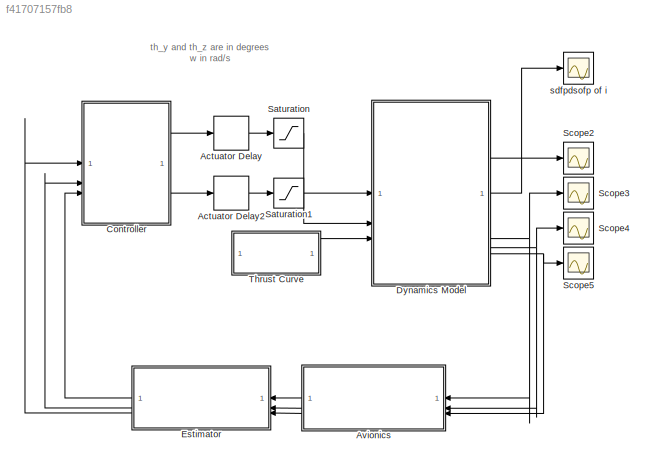
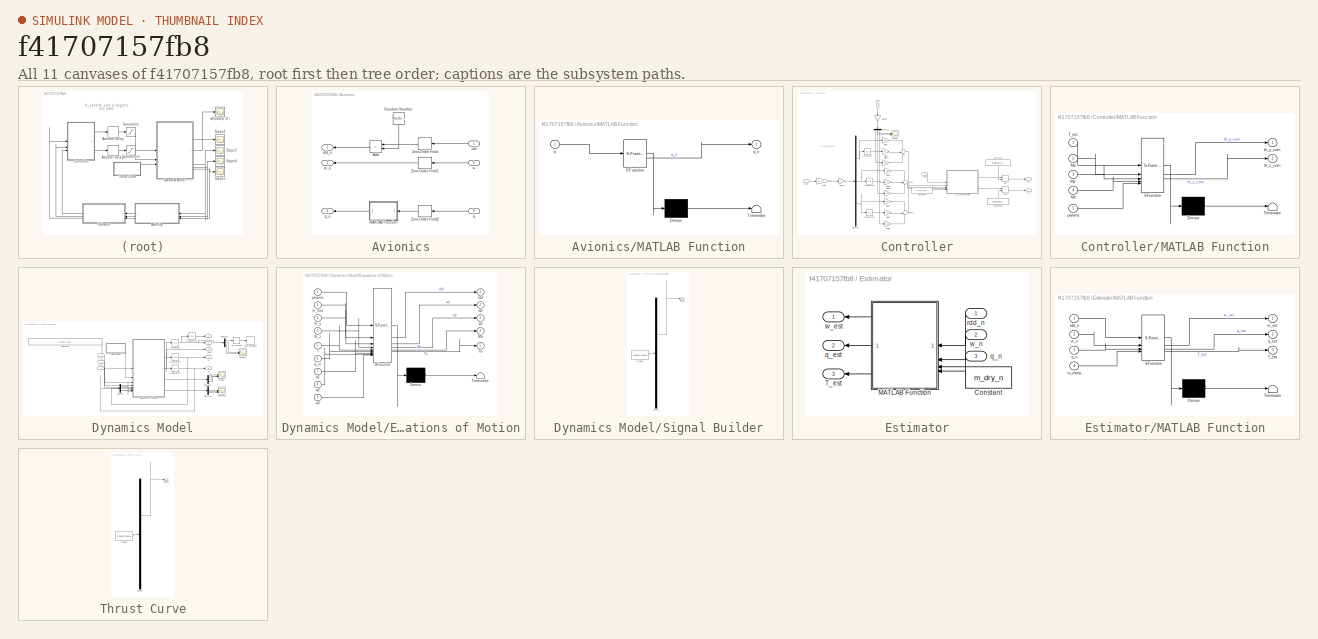
[diagram: thumbnail index - all 11 canvases of the model, root first then tree order]
MODEL slx_f41707157fb8
KIND model
CONFIG AbsTol = auto
CONFIG EnableMultiTasking = off
CONFIG FixedStep = auto
CONFIG MaxStep = auto
CONFIG MinStep = auto
CONFIG RelTol = 1e-3
CONFIG SampleTimeConstraint = Unconstrained
CONFIG SolverName = VariableStepAuto
CONFIG StartTime = 0.0
CONFIG StopTime = 7
BLOCK [Delay] Actuator Delay
  DelayLength = 1
  InitialCondition = 0
  InputPortMap = u0
  SampleTime = servo_delay_mc
BLOCK [Delay] Actuator Delay2
  DelayLength = 1
  InitialCondition = 0
  InputPortMap = u0
  SampleTime = servo_delay_mc
BLOCK [SubSystem] Avionics
BLOCK [Sum] Avionics/Add
  IconShape = rectangular
  NameLocation = top
BLOCK [SubSystem] Avionics/MATLAB Function
  ErrorFcn = Stateflow.Translate.translate
  NameLocation = top
  PermitHierarchicalResolution = ExplicitOnly
  SFBlockType = MATLAB Function
  TreatAsAtomicUnit = on
BLOCK [Demux] Avionics/MATLAB Function/ Demux 
  Outputs = 1
BLOCK [S-Function] Avionics/MATLAB Function/ SFunction 
  EnableBusSupport = on
  FunctionName = sf_sfun
  PortCounts = [1 2]
  SFcnIsStateOwnerBlock = off
  SFunctionDeploymentMode = off
  Tag = Stateflow S-Function 4
BLOCK [Terminator] Avionics/MATLAB Function/ Terminator 
BLOCK [Inport] Avionics/MATLAB Function/q
BLOCK [Outport] Avionics/MATLAB Function/q_n
BLOCK [RandomNumber] Avionics/Random Number
  Mean = 0.01
  NameLocation = left
  SampleTime = dt
BLOCK [ZeroOrderHold] Avionics/Zero-Order Hold
  NameLocation = top
  SampleTime = dt
BLOCK [ZeroOrderHold] Avionics/Zero-Order Hold1
  NameLocation = top
  SampleTime = dt
BLOCK [ZeroOrderHold] Avionics/Zero-Order Hold2
  NameLocation = top
  SampleTime = dt
BLOCK [Inport] Avionics/q
  Port = 3
BLOCK [Outport] Avionics/q_n
  Port = 3
BLOCK [Inport] Avionics/rdd
BLOCK [Outport] Avionics/rdd_n
  NameLocation = top
BLOCK [Inport] Avionics/w
  Port = 2
BLOCK [Outport] Avionics/w_n
  Port = 2
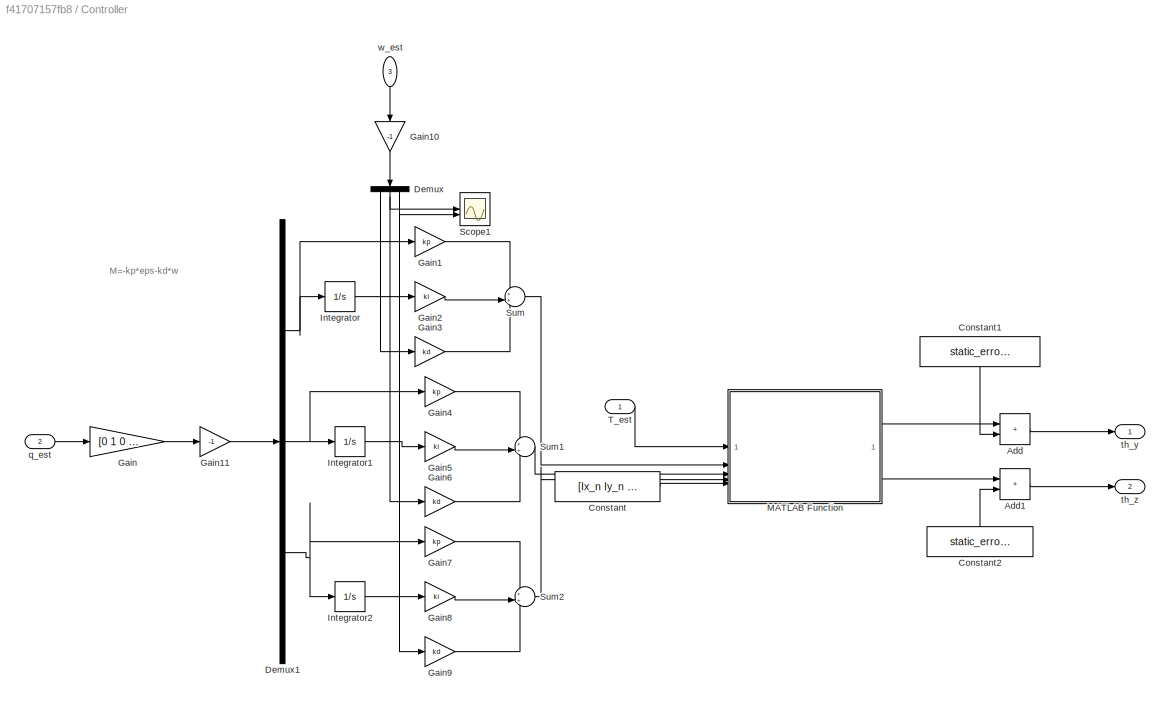
BLOCK [SubSystem] Controller
BLOCK [Sum] Controller/Add
  IconShape = rectangular
BLOCK [Sum] Controller/Add1
  IconShape = rectangular
BLOCK [Constant] Controller/Constant
  Value = [Ix_n Iy_n Iz_n l_n g]
BLOCK [Constant] Controller/Constant1
  NameLocation = left
  Value = static_error_y_mc
BLOCK [Constant] Controller/Constant2
  NameLocation = right
  Value = static_error_z_mc
BLOCK [Demux] Controller/Demux
  NameLocation = left
  Outputs = 3
BLOCK [Demux] Controller/Demux1
  Outputs = 3
BLOCK [Gain] Controller/Gain
  Gain = [0 1 0 0;0 0 1 0;0 0 0 1]
  Multiplication = Matrix(K*u) (u vector)
BLOCK [Gain] Controller/Gain1
  Gain = kp
BLOCK [Gain] Controller/Gain10
  Gain = -1
  NameLocation = left
BLOCK [Gain] Controller/Gain11
  Gain = -1
BLOCK [Gain] Controller/Gain2
  Gain = ki
BLOCK [Gain] Controller/Gain3
  Gain = kd
BLOCK [Gain] Controller/Gain4
  Gain = kp
BLOCK [Gain] Controller/Gain5
  Gain = ki
BLOCK [Gain] Controller/Gain6
  Gain = kd
BLOCK [Gain] Controller/Gain7
  Gain = kp
BLOCK [Gain] Controller/Gain8
  Gain = ki
BLOCK [Gain] Controller/Gain9
  Gain = kd
BLOCK [Integrator] Controller/Integrator
  InitialCondition = [0]
BLOCK [Integrator] Controller/Integrator1
  InitialCondition = [0]
BLOCK [Integrator] Controller/Integrator2
  InitialCondition = [0]
BLOCK [SubSystem] Controller/MATLAB Function
  ErrorFcn = Stateflow.Translate.translate
  PermitHierarchicalResolution = ExplicitOnly
  SFBlockType = MATLAB Function
  TreatAsAtomicUnit = on
BLOCK [Demux] Controller/MATLAB Function/ Demux 
  Outputs = 1
BLOCK [S-Function] Controller/MATLAB Function/ SFunction 
  EnableBusSupport = on
  FunctionName = sf_sfun
  PortCounts = [5 3]
  SFcnIsStateOwnerBlock = off
  SFunctionDeploymentMode = off
  Tag = Stateflow S-Function 3
BLOCK [Terminator] Controller/MATLAB Function/ Terminator 
BLOCK [Inport] Controller/MATLAB Function/Mx
  Port = 2
BLOCK [Inport] Controller/MATLAB Function/My
  Port = 3
BLOCK [Inport] Controller/MATLAB Function/Mz
  Port = 4
BLOCK [Inport] Controller/MATLAB Function/T_est
BLOCK [Inport] Controller/MATLAB Function/params
  Port = 5
BLOCK [Outport] Controller/MATLAB Function/th_y_com
  VectorParamsAs1DForOutWhenUnconnected = off
BLOCK [Outport] Controller/MATLAB Function/th_z_com
  Port = 2
BLOCK [Scope] Controller/Scope1
  Floating = off
  NumInputPorts = 2
  ScopeSpecificationString = Simulink.scopes.TimeScopeBlockCfg('CurrentConfiguration', extmgr.ConfigurationSet(extmgr.Configuration('Core','General UI',true),extmgr.Configuration('Core','Source UI',true),extmgr.Configuration('Sources','WiredSimulink',true,'DataLoggingVariableName','ScopeData2'),extmgr.Configuration('Visuals','Time Domain',true,'SerializedDisplays',{struct('MinYLimReal','-1.94566','MaxYLimReal','1.98585','YLab...<+1405ch>
BLOCK [Sum] Controller/Sum
  Inputs = 3
BLOCK [Sum] Controller/Sum1
  Inputs = 3
BLOCK [Sum] Controller/Sum2
  Inputs = 3
BLOCK [Inport] Controller/T_est
  NameLocation = top
BLOCK [Inport] Controller/q_est
  Port = 2
BLOCK [Outport] Controller/th_y
BLOCK [Outport] Controller/th_z
  Port = 2
BLOCK [Inport] Controller/w_est
  NameLocation = left
  Port = 3
BLOCK [SubSystem] Dynamics Model
BLOCK [Constant] Dynamics Model/Constant
  Value = [Ix_mc Iy_mc Iz_mc g l_mc mis_y_mc mis_z_mc m_dry_mc]
BLOCK [Demux] Dynamics Model/Demux
  Outputs = 3
BLOCK [Demux] Dynamics Model/Demux1
  Outputs = 3
BLOCK [Demux] Dynamics Model/Demux2
  Outputs = 3
BLOCK [Demux] Dynamics Model/Demux3
  Outputs = 3
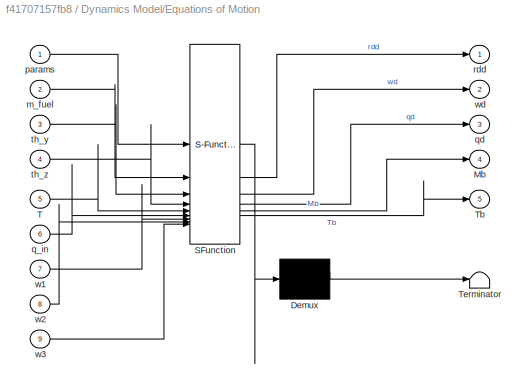
BLOCK [SubSystem] Dynamics Model/Equations of Motion
  ErrorFcn = Stateflow.Translate.translate
  PermitHierarchicalResolution = ExplicitOnly
  SFBlockType = MATLAB Function
  TreatAsAtomicUnit = on
BLOCK [Demux] Dynamics Model/Equations of Motion/ Demux 
  Outputs = 1
BLOCK [S-Function] Dynamics Model/Equations of Motion/ SFunction 
  EnableBusSupport = on
  FunctionName = sf_sfun
  PortCounts = [9 6]
  SFcnIsStateOwnerBlock = off
  SFunctionDeploymentMode = off
  Tag = Stateflow S-Function 2
BLOCK [Terminator] Dynamics Model/Equations of Motion/ Terminator 
BLOCK [Outport] Dynamics Model/Equations of Motion/Mb
  Port = 4
BLOCK [Inport] Dynamics Model/Equations of Motion/T
  Port = 5
BLOCK [Outport] Dynamics Model/Equations of Motion/Tb
  Port = 5
BLOCK [Inport] Dynamics Model/Equations of Motion/m_fuel
  Port = 2
BLOCK [Inport] Dynamics Model/Equations of Motion/params
BLOCK [Inport] Dynamics Model/Equations of Motion/q_in
  Port = 6
BLOCK [Outport] Dynamics Model/Equations of Motion/qd
  Port = 3
BLOCK [Outport] Dynamics Model/Equations of Motion/rdd
BLOCK [Inport] Dynamics Model/Equations of Motion/th_y
  Port = 3
BLOCK [Inport] Dynamics Model/Equations of Motion/th_z
  Port = 4
BLOCK [Inport] Dynamics Model/Equations of Motion/w1
  Port = 7
BLOCK [Inport] Dynamics Model/Equations of Motion/w2
  Port = 8
BLOCK [Inport] Dynamics Model/Equations of Motion/w3
  Port = 9
BLOCK [Outport] Dynamics Model/Equations of Motion/wd
  Port = 2
BLOCK [HitCross] Dynamics Model/Hit Crossing
  HitCrossingDirection = falling
  HitCrossingOffset = 0.01
BLOCK [Integrator] Dynamics Model/Integrator
  InitialCondition = [0 0 0]
BLOCK [Integrator] Dynamics Model/Integrator1
  InitialCondition = [0 0 0]
BLOCK [Integrator] Dynamics Model/Integrator3
  InitialCondition = [0 0 0]
BLOCK [Integrator] Dynamics Model/Integrator6
  InitialCondition = [1 0 0 0]
BLOCK [Scope] Dynamics Model/Scope
  Floating = off
  NumInputPorts = 3
  ScopeSpecificationString = Simulink.scopes.TimeScopeBlockCfg('CurrentConfiguration', extmgr.ConfigurationSet(extmgr.Configuration('Core','General UI',true),extmgr.Configuration('Core','Source UI',true),extmgr.Configuration('Sources','WiredSimulink',true,'DataLoggingVariableName','ScopeData1'),extmgr.Configuration('Visuals','Time Domain',true,'SerializedDisplays',{struct('MinYLimReal','-0.3423','MaxYLimReal','0.41465','YLabe...<+1387ch>
BLOCK [Scope] Dynamics Model/Scope2
  Floating = off
  NumInputPorts = 2
  ScopeSpecificationString = Simulink.scopes.TimeScopeBlockCfg('CurrentConfiguration', extmgr.ConfigurationSet(extmgr.Configuration('Core','General UI',true),extmgr.Configuration('Core','Source UI',true),extmgr.Configuration('Sources','WiredSimulink',true,'DataLoggingVariableName','ScopeData3'),extmgr.Configuration('Visuals','Time Domain',true),extmgr.Configuration('Tools','Plot Navigation',true),extmgr.Configuration('Tools',...<+40ch>
BLOCK [SubSystem] Dynamics Model/Signal Builder
  ClipboardFcn = sigbuilder_block('clipboard');
  CloseFcn = sigbuilder_block('close');
  ContinueFcn = sigbuilder_block('continue');
  CopyFcn = sigbuilder_block('copy');
  DeleteFcn = sigbuilder_block('delete');
  LoadFcn = sigbuilder_block('load');
  MaskHideContents = on
  ModelCloseFcn = sigbuilder_block('modelClose');
  NameChangeFcn = sigbuilder_block('namechange');
  OpenFcn = sigbuilder_block('open',[226 376 550 400 ]);
  PauseFcn = sigbuilder_block('pause');
  PreSaveFcn = sigbuilder_block('preSave');
  StartFcn = sigbuilder_block('start');
  StopFcn = sigbuilder_block('stop');
  Tag = STV Subsys
BLOCK [Demux] Dynamics Model/Signal Builder/Demux
  DisplayOption = none
  Outputs = 1
  Tag = STV Demux
BLOCK [FromWorkspace] Dynamics Model/Signal Builder/FromWs
  Tag = STV FromWs
  VariableName = tuvar
BLOCK [Outport] Dynamics Model/Signal Builder/Signal 1
  Tag = STV Outport
BLOCK [Stop] Dynamics Model/Stop Simulation
BLOCK [Inport] Dynamics Model/T
  Port = 3
BLOCK [Scope] Dynamics Model/asdsadsa
  Floating = off
  NumInputPorts = 3
  ScopeSpecificationString = Simulink.scopes.TimeScopeBlockCfg('CurrentConfiguration', extmgr.ConfigurationSet(extmgr.Configuration('Core','General UI',true),extmgr.Configuration('Core','Source UI',true),extmgr.Configuration('Sources','WiredSimulink',true,'DataLoggingVariableName','ScopeData2'),extmgr.Configuration('Visuals','Time Domain',true,'SerializedDisplays',{struct('MinYLimReal','-3.56807','MaxYLimReal','28.46275','YLa...<+1393ch>
BLOCK [Outport] Dynamics Model/q
  Port = 5
BLOCK [Outport] Dynamics Model/r
BLOCK [Outport] Dynamics Model/rd
  Port = 2
BLOCK [Outport] Dynamics Model/rdd
  Port = 3
BLOCK [Inport] Dynamics Model/th_y
BLOCK [Inport] Dynamics Model/th_z
  Port = 2
BLOCK [Outport] Dynamics Model/w
  Port = 4
BLOCK [SubSystem] Estimator
BLOCK [Constant] Estimator/Constant
  NameLocation = top
  Value = m_dry_n
BLOCK [SubSystem] Estimator/MATLAB Function
  ErrorFcn = Stateflow.Translate.translate
  NameLocation = top
  PermitHierarchicalResolution = ExplicitOnly
  SFBlockType = MATLAB Function
  TreatAsAtomicUnit = on
BLOCK [Demux] Estimator/MATLAB Function/ Demux 
  Outputs = 1
BLOCK [S-Function] Estimator/MATLAB Function/ SFunction 
  EnableBusSupport = on
  FunctionName = sf_sfun
  PortCounts = [4 4]
  SFcnIsStateOwnerBlock = off
  SFunctionDeploymentMode = off
  Tag = Stateflow S-Function 1
BLOCK [Terminator] Estimator/MATLAB Function/ Terminator 
BLOCK [Outport] Estimator/MATLAB Function/T_est
  Port = 3
BLOCK [Inport] Estimator/MATLAB Function/m_meas
  Port = 4
BLOCK [Outport] Estimator/MATLAB Function/q_est
  Port = 2
BLOCK [Inport] Estimator/MATLAB Function/q_n
  Port = 3
BLOCK [Inport] Estimator/MATLAB Function/rdd_n
BLOCK [Outport] Estimator/MATLAB Function/w_est
BLOCK [Inport] Estimator/MATLAB Function/w_n
  Port = 2
BLOCK [Outport] Estimator/T_est
  NameLocation = top
  Port = 3
BLOCK [Outport] Estimator/q_est
  NameLocation = top
  Port = 2
BLOCK [Inport] Estimator/q_n
  NameLocation = top
  Port = 3
BLOCK [Inport] Estimator/rdd_n
  NameLocation = top
BLOCK [Outport] Estimator/w_est
  NameLocation = top
BLOCK [Inport] Estimator/w_n
  NameLocation = top
  Port = 2
BLOCK [Saturate] Saturation
  LowerLimit = -10
  UpperLimit = 10
BLOCK [Saturate] Saturation1
  LowerLimit = -10
  UpperLimit = 10
BLOCK [Scope] Scope2
  Floating = off
  NumInputPorts = 1
  ScopeSpecificationString = Simulink.scopes.TimeScopeBlockCfg('CurrentConfiguration', extmgr.ConfigurationSet(extmgr.Configuration('Core','General UI',true),extmgr.Configuration('Core','Source UI',true),extmgr.Configuration('Sources','WiredSimulink',true,'DataLoggingVariableName','velocity','DataLogging',true,'DataLoggingSaveFormat','Structure'),extmgr.Configuration('Visuals','Time Domain',true,'SerializedDisplays',{struct('...<+1472ch>
BLOCK [Scope] Scope3
  Floating = off
  NumInputPorts = 1
  ScopeSpecificationString = Simulink.scopes.TimeScopeBlockCfg('CurrentConfiguration', extmgr.ConfigurationSet(extmgr.Configuration('Core','General UI',true),extmgr.Configuration('Core','Source UI',true),extmgr.Configuration('Sources','WiredSimulink',true,'DataLoggingVariableName','acceleration','DataLogging',true,'DataLoggingSaveFormat','Structure'),extmgr.Configuration('Visuals','Time Domain',true,'SerializedDisplays',{stru...<+1515ch>
BLOCK [Scope] Scope4
  Floating = off
  NumInputPorts = 1
  ScopeSpecificationString = Simulink.scopes.TimeScopeBlockCfg('CurrentConfiguration', extmgr.ConfigurationSet(extmgr.Configuration('Core','General UI',true),extmgr.Configuration('Core','Source UI',true),extmgr.Configuration('Sources','WiredSimulink',true,'DataLoggingVariableName','angularVelocity','DataLogging',true,'DataLoggingSaveFormat','Structure'),extmgr.Configuration('Visuals','Time Domain',true,'SerializedDisplays',{s...<+1479ch>
BLOCK [Scope] Scope5
  Floating = off
  NumInputPorts = 1
  ScopeSpecificationString = Simulink.scopes.TimeScopeBlockCfg('CurrentConfiguration', extmgr.ConfigurationSet(extmgr.Configuration('Core','General UI',true),extmgr.Configuration('Core','Source UI',true),extmgr.Configuration('Sources','WiredSimulink',true,'DataLoggingVariableName','quaternion','DataLogging',true,'DataLoggingSaveFormat','Structure'),extmgr.Configuration('Visuals','Time Domain',true,'SerializedDisplays',{struct...<+1522ch>
BLOCK [SubSystem] Thrust Curve
  ClipboardFcn = sigbuilder_block('clipboard');
  CloseFcn = sigbuilder_block('close');
  ContinueFcn = sigbuilder_block('continue');
  CopyFcn = sigbuilder_block('copy');
  DeleteFcn = sigbuilder_block('delete');
  LoadFcn = sigbuilder_block('load');
  MaskHideContents = on
  ModelCloseFcn = sigbuilder_block('modelClose');
  NameChangeFcn = sigbuilder_block('namechange');
  OpenFcn = sigbuilder_block('open',[767 231 550 400 ]);
  PauseFcn = sigbuilder_block('pause');
  PreSaveFcn = sigbuilder_block('preSave');
  StartFcn = sigbuilder_block('start');
  StopFcn = sigbuilder_block('stop');
  Tag = STV Subsys
BLOCK [Demux] Thrust Curve/Demux
  DisplayOption = none
  Outputs = 1
  Tag = STV Demux
BLOCK [FromWorkspace] Thrust Curve/FromWs
  Tag = STV FromWs
  VariableName = tuvar
BLOCK [Outport] Thrust Curve/Signal 1
  Tag = STV Outport
BLOCK [Scope] sdfpdsofp of i
  Floating = off
  NumInputPorts = 1
  ScopeSpecificationString = Simulink.scopes.TimeScopeBlockCfg('CurrentConfiguration', extmgr.ConfigurationSet(extmgr.Configuration('Core','General UI',true),extmgr.Configuration('Core','Source UI',true),extmgr.Configuration('Sources','WiredSimulink',true,'DataLoggingVariableName','position','DataLogging',true,'DataLoggingSaveFormat','Structure'),extmgr.Configuration('Visuals','Time Domain',true,'SerializedDisplays',{struct('...<+1505ch>
ANNOTATION (root): th_y and th_z are in degrees w in rad/s
ANNOTATION Controller: M=-kp*eps-kd*w
LINE Actuator Delay2:1 -> Saturation1:1
LINE Actuator Delay:1 -> Saturation:1
LINE Avionics/Add:1 -> Avionics/rdd_n:1
LINE Avionics/MATLAB Function:1 -> Avionics/q_n:1
LINE Avionics/Random Number:1 -> Avionics/Add:2
LINE Avionics/Zero-Order Hold1:1 -> Avionics/w_n:1
LINE Avionics/Zero-Order Hold2:1 -> Avionics/MATLAB Function:1
LINE Avionics/Zero-Order Hold:1 -> Avionics/Add:1
LINE Avionics/q:1 -> Avionics/Zero-Order Hold2:1
LINE Avionics/rdd:1 -> Avionics/Zero-Order Hold:1
LINE Avionics/w:1 -> Avionics/Zero-Order Hold1:1
LINE Avionics:1 -> Estimator:1
LINE Avionics:2 -> Estimator:2
LINE Avionics:3 -> Estimator:3
LINE Controller/Add1:1 -> Controller/th_z:1
LINE Controller/Add:1 -> Controller/th_y:1
LINE Controller/Constant1:1 -> Controller/Add:2
LINE Controller/Constant2:1 -> Controller/Add1:2
LINE Controller/Constant:1 -> Controller/MATLAB Function:5
NET Controller/Demux1:1 -> Controller/Gain1:1, Controller/Integrator:1
NET Controller/Demux1:2 -> Controller/Gain4:1, Controller/Integrator1:1
NET Controller/Demux1:3 -> Controller/Gain7:1, Controller/Integrator2:1
LINE Controller/Demux:1 -> Controller/Gain3:1
NET Controller/Demux:2 -> Controller/Gain6:1, Controller/Scope1:1
NET Controller/Demux:3 -> Controller/Gain9:1, Controller/Scope1:2
LINE Controller/Gain10:1 -> Controller/Demux:1
LINE Controller/Gain11:1 -> Controller/Demux1:1
LINE Controller/Gain1:1 -> Controller/Sum:1
LINE Controller/Gain2:1 -> Controller/Sum:2
LINE Controller/Gain3:1 -> Controller/Sum:3
LINE Controller/Gain4:1 -> Controller/Sum1:1
LINE Controller/Gain5:1 -> Controller/Sum1:2
LINE Controller/Gain6:1 -> Controller/Sum1:3
LINE Controller/Gain7:1 -> Controller/Sum2:1
LINE Controller/Gain8:1 -> Controller/Sum2:2
LINE Controller/Gain9:1 -> Controller/Sum2:3
LINE Controller/Gain:1 -> Controller/Gain11:1
LINE Controller/Integrator1:1 -> Controller/Gain5:1
LINE Controller/Integrator2:1 -> Controller/Gain8:1
LINE Controller/Integrator:1 -> Controller/Gain2:1
LINE Controller/MATLAB Function:1 -> Controller/Add:1
LINE Controller/MATLAB Function:2 -> Controller/Add1:1
LINE Controller/Sum1:1 -> Controller/MATLAB Function:3
LINE Controller/Sum2:1 -> Controller/MATLAB Function:4
LINE Controller/Sum:1 -> Controller/MATLAB Function:2
LINE Controller/T_est:1 -> Controller/MATLAB Function:1
LINE Controller/q_est:1 -> Controller/Gain:1
LINE Controller/w_est:1 -> Controller/Gain10:1
LINE Controller:1 -> Actuator Delay:1
LINE Controller:2 -> Actuator Delay2:1
LINE Dynamics Model/Constant:1 -> Dynamics Model/Equations of Motion:1
LINE Dynamics Model/Demux1:1 -> Dynamics Model/Scope:1
LINE Dynamics Model/Demux1:2 -> Dynamics Model/Scope:2
LINE Dynamics Model/Demux1:3 -> Dynamics Model/Scope:3
LINE Dynamics Model/Demux2:1 -> Dynamics Model/asdsadsa:1
LINE Dynamics Model/Demux2:2 -> Dynamics Model/asdsadsa:2
LINE Dynamics Model/Demux2:3 -> Dynamics Model/asdsadsa:3
LINE Dynamics Model/Demux3:1 -> Dynamics Model/Hit Crossing:1
LINE Dynamics Model/Demux3:2 -> Dynamics Model/Scope2:1
LINE Dynamics Model/Demux3:3 -> Dynamics Model/Scope2:2
LINE Dynamics Model/Demux:1 -> Dynamics Model/Equations of Motion:7
LINE Dynamics Model/Demux:2 -> Dynamics Model/Equations of Motion:8
LINE Dynamics Model/Demux:3 -> Dynamics Model/Equations of Motion:9
NET Dynamics Model/Equations of Motion:1 -> Dynamics Model/Integrator:1, Dynamics Model/rdd:1
LINE Dynamics Model/Equations of Motion:2 -> Dynamics Model/Integrator3:1
LINE Dynamics Model/Equations of Motion:3 -> Dynamics Model/Integrator6:1
LINE Dynamics Model/Equations of Motion:4 -> Dynamics Model/Demux1:1
LINE Dynamics Model/Equations of Motion:5 -> Dynamics Model/Demux2:1
LINE Dynamics Model/Hit Crossing:1 -> Dynamics Model/Stop Simulation:1
LINE Dynamics Model/Integrator1:1 -> Dynamics Model/r:1
NET Dynamics Model/Integrator3:1 -> Dynamics Model/Demux:1, Dynamics Model/w:1
NET Dynamics Model/Integrator6:1 -> Dynamics Model/Equations of Motion:6, Dynamics Model/q:1
NET Dynamics Model/Integrator:1 -> Dynamics Model/Demux3:1, Dynamics Model/Integrator1:1, Dynamics Model/rd:1
LINE Dynamics Model/Signal Builder:1 -> Dynamics Model/Equations of Motion:2
LINE Dynamics Model/T:1 -> Dynamics Model/Equations of Motion:5
LINE Dynamics Model/th_y:1 -> Dynamics Model/Equations of Motion:3
LINE Dynamics Model/th_z:1 -> Dynamics Model/Equations of Motion:4
LINE Dynamics Model:1 -> sdfpdsofp of i:1
LINE Dynamics Model:2 -> Scope2:1
NET Dynamics Model:3 -> Avionics:1, Scope3:1
NET Dynamics Model:4 -> Avionics:2, Scope4:1
NET Dynamics Model:5 -> Avionics:3, Scope5:1
LINE Estimator/Constant:1 -> Estimator/MATLAB Function:4
LINE Estimator/MATLAB Function:1 -> Estimator/w_est:1
LINE Estimator/MATLAB Function:2 -> Estimator/q_est:1
LINE Estimator/MATLAB Function:3 -> Estimator/T_est:1
LINE Estimator/q_n:1 -> Estimator/MATLAB Function:3
LINE Estimator/rdd_n:1 -> Estimator/MATLAB Function:1
LINE Estimator/w_n:1 -> Estimator/MATLAB Function:2
LINE Estimator:1 -> Controller:3
LINE Estimator:2 -> Controller:2
LINE Estimator:3 -> Controller:1
LINE Saturation1:1 -> Dynamics Model:2
LINE Saturation:1 -> Dynamics Model:1
LINE Thrust Curve:1 -> Dynamics Model:3
note: NET lines group one-source signal fan-out (src -> all destinations, sorted); 1:1 wires keep LINE
CHART Estimator/MATLAB Function states=1 transitions=1
  STATE_LABEL 'eML_blk_kernel()'
  STATE_LABEL 'SCRIPT:\nfunction [w_est,q_est,T_est] = estimator(rdd_n,w_n,q_n,m_meas)\n    w_est=w_n;\n    T_est=norm(rdd_n)*m_meas;\n    q_est=q_n;\nend\n'
CHART Dynamics Model/Equations of Motion states=1 transitions=1
  STATE_LABEL 'eML_blk_kernel()'
  STATE_LABEL 'SCRIPT:\nfunction [rdd,wd,qd,Mb,Tb] = EOM(params,m_fuel,th_y,th_z,T,q_in,w1,w2,w3)\nIx=params(1);\nIy=params(2);\nIz=params(3);\ng=params(4);\nl=params(5);\nmis_y=params(6);\nmis_z=params(7);\nm_dry=params(8);\nm=m_dry+m_fuel/1000;\nwx=w1;\nwy=w2;\nwz=w3;\n\nif size(q_in)==1\n    q_in=[1;0;0;0];\n    th_y=0;\n    th_z=0;\nend\ngCb=[cosd(th_z) sind(th_z) 0;-sind(th_z) cosd(th_z) 0;0 0 1]*[cosd(th_y) 0 -sind(th_y);0 1 ...<+720ch>'
CHART Controller/MATLAB Function states=1 transitions=1
  STATE_LABEL 'eML_blk_kernel()'
  STATE_LABEL 'SCRIPT:\nfunction [th_y_com,th_z_com] = Moments2Commands(T_est,Mx,My,Mz,params)\n    Ix=params(1);\n    Iy=params(2);\n    Iz=params(3);\n    l=params(4);\n    g=params(5);\n    \n    Tb=[0;Mz/l;-My/l];  %First component is unknown (free parameter)\n    th_y_com=asin(Tb(3)/T_est)*(180/pi);\n    th_z_com=asin(Tb(2)/(-T_est*cos((pi*th_y_com)/180)))*(180/pi);   \nend'
CHART Avionics/MATLAB Function states=1 transitions=1
  STATE_LABEL 'eML_blk_kernel()'
  STATE_LABEL 'SCRIPT:\nfunction q_n = quat_corrupt(q)\n    angle_var=0.01;\n    axis=randn(3,1);\n    axis=axis/norm(axis);\n    angle=randn*angle_var;\n    q_rot=[cos(angle/2);axis(1)*sin(angle/2);axis(2)*sin(angle/2);axis(3)*sin(angle/2)];\n    q_n=hamilton(q,q_rot);\n    \n    function product=hamilton(q,r)\n    product=[r(1)*q(1)-r(2)*q(2)-r(3)*q(3)-r(4)*q(4);\n             r(1)*q(2)+r(2)*q(1)-r(3)*q(4)+r(4)*q(3);\n   ...<+118ch>'
CHART  states=0 transitions=0
CHART  states=0 transitions=0
CHART  states=0 transitions=0
CHART  states=0 transitions=0
